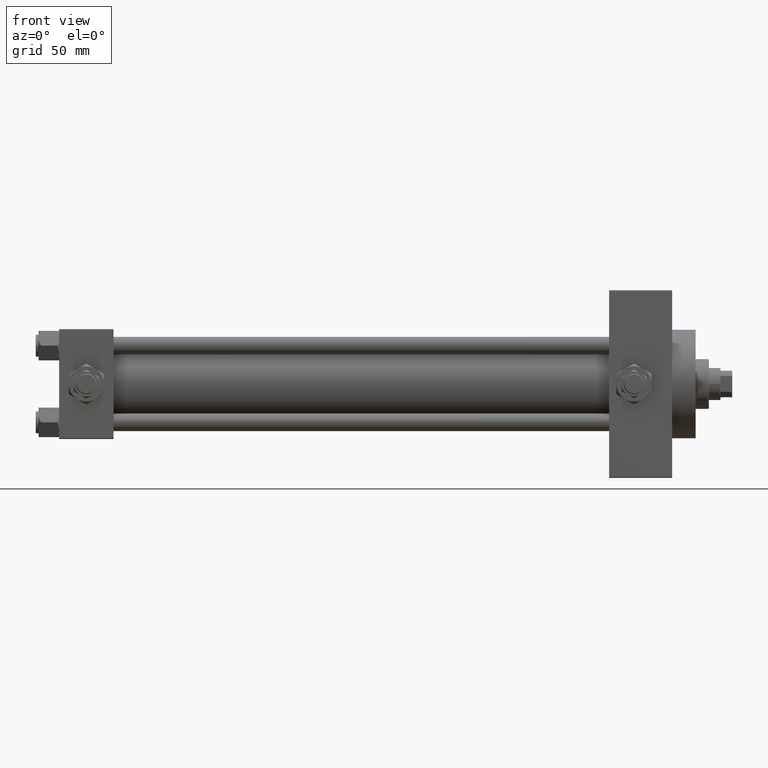
[diagram: clean part render]
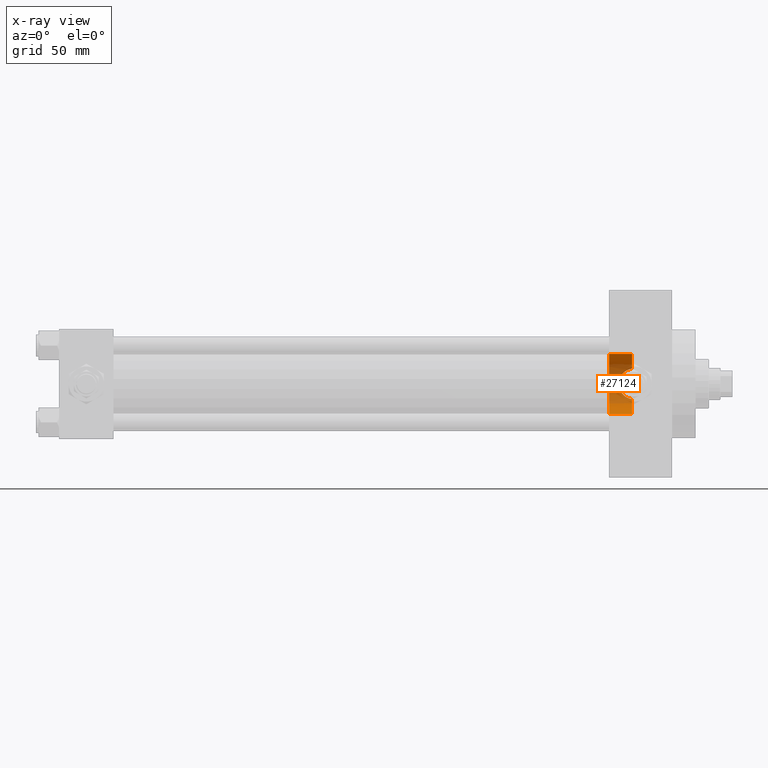
[diagram: x-ray — body ghosted, one internal face saturated and labeled with its STEP entity id]
A machine part, front view, then the same camera in x-ray: the body is ghosted and one INTERNAL B-rep face — a face not visible from any outside direction — is saturated and labeled: STEP entity #27124.
In plain terms, the highlighted cylindrical surface (edge-blend (fillet) strip) has radius 20.5 mm, axis along (1, 0, 0).
Its self-contained STEP definition (entity closure, byte-faithful):
#650 = CIRCLE ( 'NONE', #46976, 20.50000000000000000 ) ;
#1343 = CARTESIAN_POINT ( 'NONE',  ( 386.5540551289639097, 18.43336478924042865, -8.976070117816870919 ) ) ;
#1847 = CARTESIAN_POINT ( 'NONE',  ( 383.7585215008534192, 19.44730781319916346, 6.503667501390179240 ) ) ;
#2091 = CARTESIAN_POINT ( 'NONE',  ( 381.8195863185152348, 20.34821612510051381, -2.569519367473354077 ) ) ;
#2226 = AXIS2_PLACEMENT_3D ( 'NONE', #38866, #38123, #3836 ) ;
#2336 = CARTESIAN_POINT ( 'NONE',  ( 381.5194347766351939, 20.50028895312888721, 0.6338901944550604517 ) ) ;
#3158 = CARTESIAN_POINT ( 'NONE',  ( -20.98275605729688209, 0.000000000000000000, -20.50000000000000000 ) ) ;
#3564 = CARTESIAN_POINT ( 'NONE',  ( 375.0000000000000000, 2.510525938252073693E-15, 20.50000000000000000 ) ) ;
#3836 = DIRECTION ( 'NONE',  ( 0.000000000000000000, 0.000000000000000000, -1.000000000000000000 ) ) ;
#5374 = CARTESIAN_POINT ( 'NONE',  ( 386.5501105018311137, 18.43457416514924319, 8.973569604830389679 ) ) ;
#5620 = CARTESIAN_POINT ( 'NONE',  ( 385.0492562722550360, 18.93465352367355692, 7.867929910865557375 ) ) ;
#6109 = CARTESIAN_POINT ( 'NONE',  ( 387.3846545558102434, 18.21123748805221254, 9.414241774011475883 ) ) ;
#6359 = CARTESIAN_POINT ( 'NONE',  ( 382.7349221210387782, 19.90416465987144079, -4.937899098886110671 ) ) ;
#6950 = EDGE_CURVE ( 'NONE', #25286, #38256, #14196, .T. ) ;
#9045 = VECTOR ( 'NONE', #37704, 1000.000000000000000 ) ;
#9110 = CARTESIAN_POINT ( 'NONE',  ( 384.5898559263963534, 19.10985655083380053, -7.436904887742012527 ) ) ;
#9355 = CARTESIAN_POINT ( 'NONE',  ( 387.3908628646930197, 18.20965404972807988, -9.417308131441558317 ) ) ;
#9602 = CARTESIAN_POINT ( 'NONE',  ( 382.0031508505380771, 20.25711897762383629, 3.161628577960799547 ) ) ;
#9852 = CARTESIAN_POINT ( 'NONE',  ( 389.4678957388831577, 17.78974368295220998, 10.18933358872180150 ) ) ;
#10055 = DIRECTION ( 'NONE',  ( 1.000000000000000000, -0.000000000000000000, -0.000000000000000000 ) ) ;
#10086 = CARTESIAN_POINT ( 'NONE',  ( 381.5775683569960961, 20.47037528635598136, 1.274177104114229131 ) ) ;
#12007 = EDGE_CURVE ( 'NONE', #34101, #25286, #36195, .T. ) ;
#13365 = CARTESIAN_POINT ( 'NONE',  ( 386.0285517498638228, 18.59748531110674108, 8.634753340253865872 ) ) ;
#13620 = CARTESIAN_POINT ( 'NONE',  ( 382.4497435801187635, 20.03964341536168092, -4.361650410534251954 ) ) ;
#14196 = LINE ( 'NONE', #3158, #9045 ) ;
#14347 = VERTEX_POINT ( 'NONE', #49472 ) ;
#14523 = CARTESIAN_POINT ( 'NONE',  ( -20.98275605729688209, 2.510525938252073693E-15, 20.50000000000000000 ) ) ;
#15584 = CARTESIAN_POINT ( 'NONE',  ( 375.0000000000000000, 0.000000000000000000, 0.000000000000000000 ) ) ;
#16571 = ORIENTED_EDGE ( 'NONE', *, *, #12007, .T. ) ;
#16623 = ORIENTED_EDGE ( 'NONE', *, *, #26220, .T. ) ;
#16641 = CARTESIAN_POINT ( 'NONE',  ( 381.5353429949686870, 20.49214410358180416, -0.6531678235493620921 ) ) ;
#17138 = CARTESIAN_POINT ( 'NONE',  ( 382.3316230008212528, 20.09694501355985352, 4.056310707489530820 ) ) ;
#17595 = DIRECTION ( 'NONE',  ( 0.000000000000000000, 0.000000000000000000, -1.000000000000000000 ) ) ;
#17624 = CARTESIAN_POINT ( 'NONE',  ( 390.7399999999998386, 17.66372554134604655, -10.40398000767011055 ) ) ;
#18082 = FACE_OUTER_BOUND ( 'NONE', #20187, .T. ) ;
#18277 = LINE ( 'NONE', #14523, #41270 ) ;
#18890 = VERTEX_POINT ( 'NONE', #48815 ) ;
#20187 = EDGE_LOOP ( 'NONE', ( #38618, #16571, #22015, #16623, #22598, #47809 ) ) ;
#21373 = CARTESIAN_POINT ( 'NONE',  ( 390.7399999999999523, 17.66372554134604300, 10.40398000767012121 ) ) ;
#21837 = CARTESIAN_POINT ( 'NONE',  ( 390.7399999999999523, 0.000000000000000000, -20.50000000000000000 ) ) ;
#22015 = ORIENTED_EDGE ( 'NONE', *, *, #6950, .T. ) ;
#22598 = ORIENTED_EDGE ( 'NONE', *, *, #30048, .T. ) ;
#23035 = AXIS2_PLACEMENT_3D ( 'NONE', #26331, #10055, #17595 ) ;
#23387 = EDGE_CURVE ( 'NONE', #34101, #14347, #18277, .T. ) ;
#24240 = AXIS2_PLACEMENT_3D ( 'NONE', #15584, #41841, #31088 ) ;
#24396 = CARTESIAN_POINT ( 'NONE',  ( 381.5957902639763120, 20.46134169501557309, -1.299266796120041922 ) ) ;
#24645 = CARTESIAN_POINT ( 'NONE',  ( 382.8934847984988323, 19.83246682013212947, 5.196259042236643033 ) ) ;
#24892 = CARTESIAN_POINT ( 'NONE',  ( 382.4587195145564351, 20.03597512078204801, 4.346863487503902057 ) ) ;
#25144 = CARTESIAN_POINT ( 'NONE',  ( 385.0506999956343748, 18.93410654091561440, -7.869268069913783137 ) ) ;
#25286 = VERTEX_POINT ( 'NONE', #30935 ) ;
#25386 = CARTESIAN_POINT ( 'NONE',  ( 387.6797447738802020, 18.13843621863678379, -9.553335258510033512 ) ) ;
#26220 = EDGE_CURVE ( 'NONE', #38256, #37803, #47764, .T. ) ;
#26331 = CARTESIAN_POINT ( 'NONE',  ( -20.98275605729688209, 0.000000000000000000, 0.000000000000000000 ) ) ;
#26671 = EDGE_CURVE ( 'NONE', #18890, #14347, #650, .T. ) ;
#27124 = ADVANCED_FACE ( 'NONE', ( #18082 ), #33334, .F. ) ;
#28147 = CARTESIAN_POINT ( 'NONE',  ( 388.5586034380960427, 17.94919963049266798, 9.903944034907013361 ) ) ;
#28392 = CARTESIAN_POINT ( 'NONE',  ( 382.1038390309690840, 20.20751560694122873, 3.463692888950916871 ) ) ;
#28636 = CARTESIAN_POINT ( 'NONE',  ( 383.3906553486646089, 19.60752197575042999, -6.008635476422192312 ) ) ;
#28887 = CARTESIAN_POINT ( 'NONE',  ( 381.5202887705626722, 20.49985237489623557, -0.3308603822797668847 ) ) ;
#29536 = DIRECTION ( 'NONE',  ( 1.000000000000000000, -0.000000000000000000, -0.000000000000000000 ) ) ;
#30048 = EDGE_CURVE ( 'NONE', #37803, #18890, #49487, .T. ) ;
#30935 = CARTESIAN_POINT ( 'NONE',  ( 375.0000000000000000, 0.000000000000000000, -20.50000000000000000 ) ) ;
#31088 = DIRECTION ( 'NONE',  ( 0.000000000000000000, 0.000000000000000000, 1.000000000000000000 ) ) ;
#32397 = CARTESIAN_POINT ( 'NONE',  ( 383.3865427488643149, 19.60931742929914279, 6.003004479396537363 ) ) ;
#32884 = CARTESIAN_POINT ( 'NONE',  ( 387.6731848345800699, 18.13998450134082674, 9.550405103935315054 ) ) ;
#33334 = CYLINDRICAL_SURFACE ( 'NONE', #23035, 20.50000000000000000 ) ;
#34101 = VERTEX_POINT ( 'NONE', #3564 ) ;
#34255 = DIRECTION ( 'NONE',  ( 0.000000000000000000, 0.000000000000000000, -1.000000000000000000 ) ) ;
#34755 = CARTESIAN_POINT ( 'NONE',  ( 390.7399999999999523, 0.000000000000000000, 0.000000000000000000 ) ) ;
#35891 = CARTESIAN_POINT ( 'NONE',  ( 388.2603242755635051, 18.00896673207867948, 9.795222948000837704 ) ) ;
#36195 = CIRCLE ( 'NONE', #24240, 20.50000000000000000 ) ;
#36629 = CARTESIAN_POINT ( 'NONE',  ( 390.0935359396744957, 17.70983952302582765, -10.32568836202973195 ) ) ;
#37704 = DIRECTION ( 'NONE',  ( 1.000000000000000000, -0.000000000000000000, -0.000000000000000000 ) ) ;
#37803 = VERTEX_POINT ( 'NONE', #44391 ) ;
#38123 = DIRECTION ( 'NONE',  ( 1.000000000000000000, 0.000000000000000000, 0.000000000000000000 ) ) ;
#38256 = VERTEX_POINT ( 'NONE', #21837 ) ;
#38618 = ORIENTED_EDGE ( 'NONE', *, *, #23387, .F. ) ;
#38866 = CARTESIAN_POINT ( 'NONE',  ( 390.7399999999999523, 0.000000000000000000, 0.000000000000000000 ) ) ;
#39890 = CARTESIAN_POINT ( 'NONE',  ( 383.7616963509111656, 19.44597719880568931, -6.507545042970958704 ) ) ;
#40138 = CARTESIAN_POINT ( 'NONE',  ( 382.7394326810550638, 19.90382809429886279, 4.916619612314025112 ) ) ;
#40381 = CARTESIAN_POINT ( 'NONE',  ( 388.5622284196640521, 17.94851741335675399, -9.905176136510901230 ) ) ;
#40622 = CARTESIAN_POINT ( 'NONE',  ( 386.0314513987548821, 18.59653710660909809, -8.636815275402071279 ) ) ;
#41270 = VECTOR ( 'NONE', #29536, 1000.000000000000000 ) ;
#41841 = DIRECTION ( 'NONE',  ( -1.000000000000000000, 0.000000000000000000, -0.000000000000000000 ) ) ;
#41997 = DIRECTION ( 'NONE',  ( 1.000000000000000000, 0.000000000000000000, 0.000000000000000000 ) ) ;
#43383 = CARTESIAN_POINT ( 'NONE',  ( 381.7549241387680468, 20.38083843111443727, 2.230218096741797051 ) ) ;
#43624 = CARTESIAN_POINT ( 'NONE',  ( 389.4692110592000063, 17.78960674829262345, -10.18955633345267131 ) ) ;
#43876 = CARTESIAN_POINT ( 'NONE',  ( 381.8288109744087819, 20.34372046973748027, 2.545545518699424914 ) ) ;
#44127 = CARTESIAN_POINT ( 'NONE',  ( 381.6413500805442141, 20.43816521463578084, -1.622339351879626079 ) ) ;
#44368 = CARTESIAN_POINT ( 'NONE',  ( 388.2648511999843777, 18.00804264202516336, -9.796911922746305734 ) ) ;
#44391 = CARTESIAN_POINT ( 'NONE',  ( 390.7399999999998386, 17.66372554134604655, -10.40398000767011055 ) ) ;
#46976 = AXIS2_PLACEMENT_3D ( 'NONE', #34755, #41997, #34255 ) ;
#47128 = CARTESIAN_POINT ( 'NONE',  ( 384.5883649652938061, 19.11041985978088675, 7.435544696446127588 ) ) ;
#47621 = CARTESIAN_POINT ( 'NONE',  ( 381.9940503003029448, 20.26077342853018592, -3.179994118914011292 ) ) ;
#47764 = CIRCLE ( 'NONE', #2226, 20.50000000000000000 ) ;
#47809 = ORIENTED_EDGE ( 'NONE', *, *, #26671, .T. ) ;
#48128 = CARTESIAN_POINT ( 'NONE',  ( 390.0932392917490006, 17.70986068370256206, 10.32565243574132907 ) ) ;
#48815 = CARTESIAN_POINT ( 'NONE',  ( 390.7399999999999523, 17.66372554134604300, 10.40398000767012121 ) ) ;
#49472 = CARTESIAN_POINT ( 'NONE',  ( 390.7399999999999523, 2.510525938252073693E-15, 20.50000000000000000 ) ) ;
#49487 = B_SPLINE_CURVE_WITH_KNOTS ( 'NONE', 3,
 ( #17624, #36629, #43624, #40381, #44368, #25386, #9355, #1343, #40622, #25144, #9110, #39890, #28636, #6359, #13620, #47621, #2091, #44127, #24396, #16641, #28887, #2336, #10086, #43383, #43876, #9602, #28392, #17138, #24892, #40138, #24645, #32397, #1847, #47128, #5620, #13365, #5374, #6109, #32884, #35891, #28147, #9852, #48128, #21373 ),
 .UNSPECIFIED., .F., .F.,
 ( 4, 2, 2, 2, 2, 2, 2, 2, 2, 2, 2, 2, 2, 2, 2, 2, 2, 2, 2, 2, 2, 4 ),
 ( 0.000000000000000000, 0.001926809448868427917, 0.002890214173302719288, 0.003853618897737010659, 0.005780428346605593834, 0.007707237795474177443, 0.009634047244342759317, 0.01156085669321134032, 0.01348766614207992307, 0.01445107086651423005, 0.01541447559094853530, 0.01734128503981714753, 0.01830468976425147012, 0.01926809448868579619, 0.02023149921312011879, 0.02119490393755444138, 0.02312171338642308657, 0.02504852283529172483, 0.02697533228416036655, 0.02793873700859461282, 0.02890214173302886255, 0.03082895118189736550 ),
 .UNSPECIFIED. ) ;